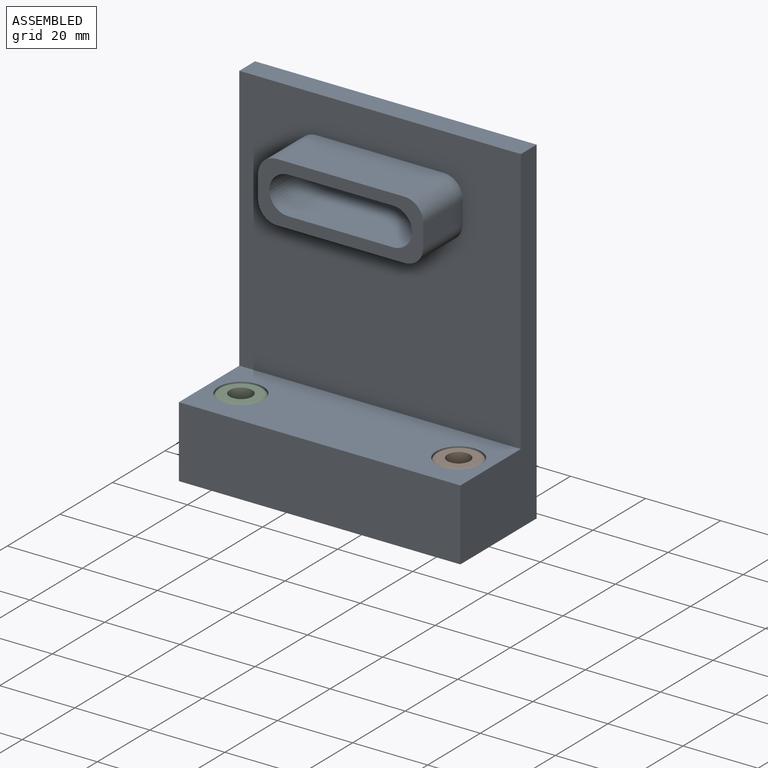
[diagram: assembled view]
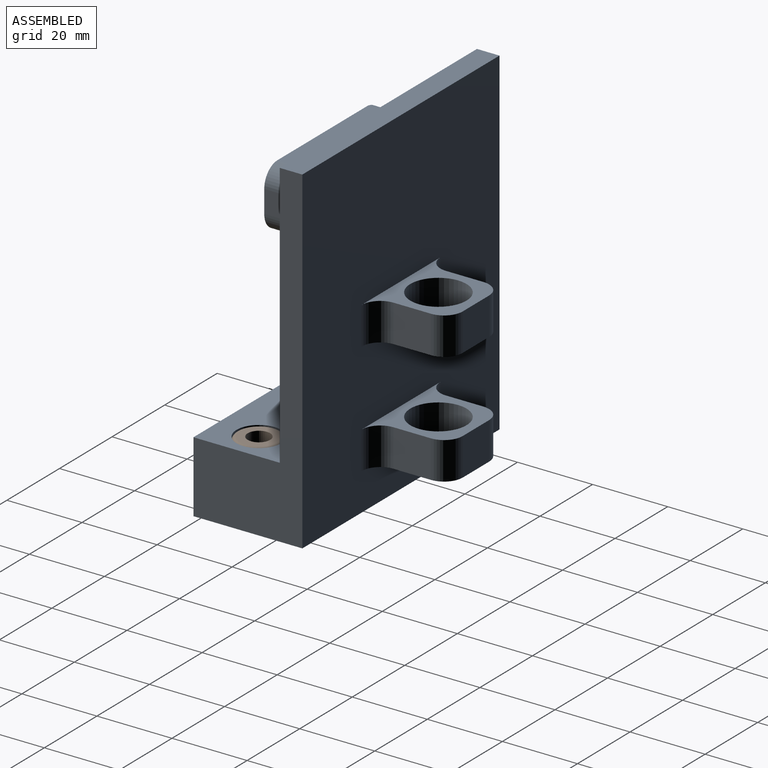
[diagram: assembled view, second angle]
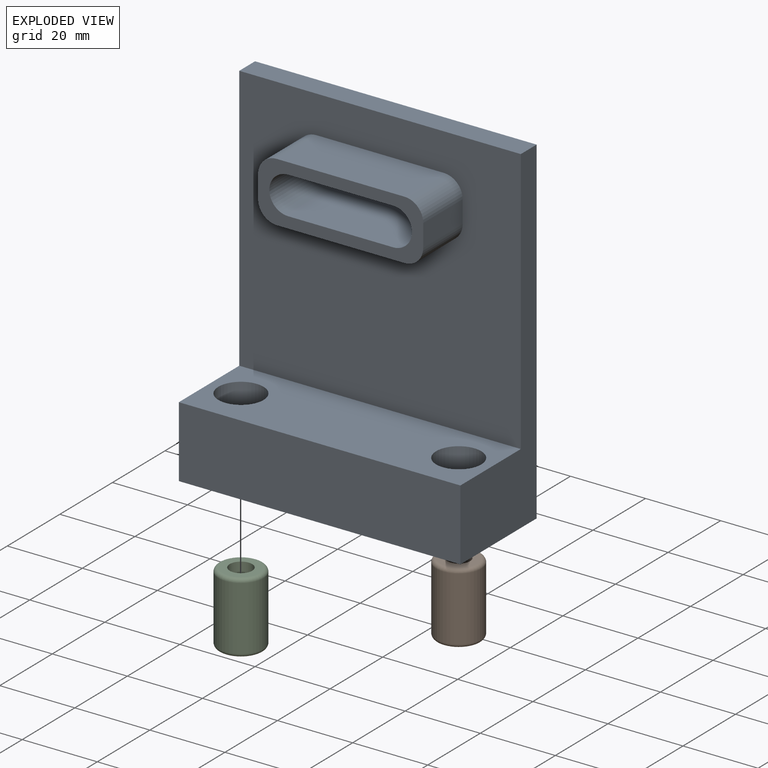
[diagram: exploded view]
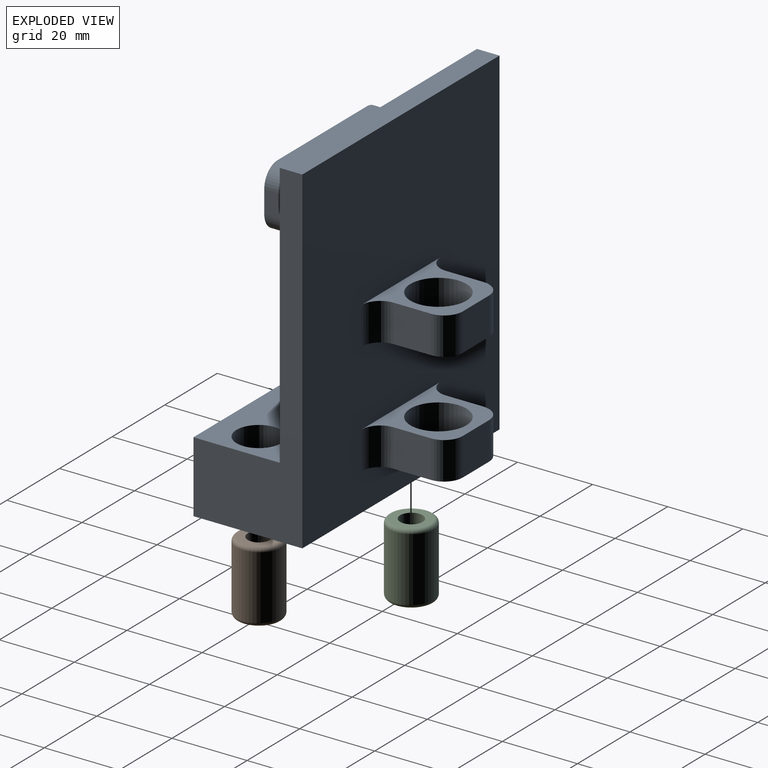
[diagram: exploded view, second angle]
ASSEMBLY  parts=3 mates=2
PART A: 62 faces, bbox 75x49x90 mm
  f0: plane 90x75mm, normal (0,1,0), area 6150mm2, adj f2,f3,f4,f5,f25,f27,f29,f31
  f1: plane 75x71mm, normal (0,-1,0), area 4642.5mm2, adj f2,f4,f5,f6,f10,f11,f12,f13
  f2: plane 90x29mm, normal (-1,0,0), area 977mm2, adj f0,f1,f3,f5,f6,f7
  f3: plane 75x29mm, normal (0,0,-1), area 1948.8mm2, adj f0,f2,f4,f7,f8,f9
  f4: plane 90x29mm, normal (1,0,0), area 977mm2, adj f0,f1,f3,f5,f6,f7
  f5: plane 75x6mm, normal (0,0,1), area 450mm2, adj f0,f1,f2,f4
  f6: plane 75x23mm, normal (0,0,1), area 1498.8mm2, adj f1,f2,f4,f7,f8,f9
  f7: plane 75x19mm, normal (0,-1,0), area 1425mm2, adj f2,f3,f4,f6
  f8: cylinder r=6mm len=19mm, axis (0,0,1), area 716.3mm2, adj f3,f6
  f9: cylinder r=6mm len=19mm, axis (0,0,1), area 716.3mm2, adj f3,f6
  f10: plane 15x6mm, normal (-1,0,0), area 90mm2, adj f1,f14,f20,f23
  f11: plane 34x15mm, normal (0,0,-1), area 510mm2, adj f1,f14,f20,f21
  f12: plane 15x6mm, normal (1,0,0), area 90mm2, adj f1,f14,f21,f22
  f13: plane 34x15mm, normal (0,0,1), area 510mm2, adj f1,f14,f22,f23
  f14: plane 44x16mm, normal (0,-1,0), area 324mm2, adj f10,f11,f12,f13,f15,f16,f18,f19
  f15: plane 28x18mm, normal (0,0,-1), area 504mm2, adj f14,f17,f18,f19
  f16: plane 28x18mm, normal (0,0,1), area 504mm2, adj f14,f17,f18,f19
  f17: plane 38x10mm, normal (0,-1,0), area 358.5mm2, adj f15,f16,f18,f19
  f18: cylinder r=5mm len=18mm, axis (0,1,0), area 282.7mm2, adj f14,f15,f16,f17
  f19: cylinder r=5mm len=18mm, axis (0,-1,0), area 282.7mm2, adj f14,f15,f16,f17
  f20: cylinder r=5mm len=15mm, axis (0,1,0), area 117.8mm2, adj f1,f10,f11,f14
  f21: cylinder r=5mm len=15mm, axis (0,-1,0), area 117.8mm2, adj f1,f11,f12,f14
  f22: cylinder r=5mm len=15mm, axis (0,1,0), area 117.8mm2, adj f1,f12,f13,f14
  f23: cylinder r=5mm len=15mm, axis (0,-1,0), area 117.8mm2, adj f1,f10,f13,f14
  f24: plane 10x10mm, normal (-1,0,0), area 100mm2, adj f25,f27,f37,f39
  f25: plane 30x20mm, normal (0,0,1), area 223.3mm2, adj f0,f24,f26,f28,f35,f36,f37,f38
  f26: plane 10x10mm, normal (1,0,0), area 100mm2, adj f25,f27,f36,f38
  f27: plane 30x20mm, normal (0,0,-1), area 223.3mm2, adj f0,f24,f26,f28,f35,f36,f37,f38
  f28: plane 10x10mm, normal (0,1,0), area 100mm2, adj f25,f27,f38,f39
  f29: plane 30x20mm, normal (0,0,-1), area 223.3mm2, adj f0,f30,f32,f33,f34,f40,f41,f42
  f30: plane 10x10mm, normal (-1,0,0), area 100mm2, adj f29,f31,f40,f42
  f31: plane 30x20mm, normal (0,0,1), area 223.3mm2, adj f0,f30,f32,f33,f34,f40,f41,f42
  f32: plane 10x10mm, normal (1,0,0), area 100mm2, adj f29,f31,f41,f43
  f33: plane 10x10mm, normal (0,1,0), area 100mm2, adj f29,f31,f42,f43
  f34: cylinder r=7.5mm len=15mm, axis (0,0,1), area 471.2mm2, adj f29,f31
  f35: cylinder r=7.5mm len=15mm, axis (0,0,1), area 471.2mm2, adj f25,f27
  f36: cylinder r=5mm len=10mm, axis (0,0,1), area 78.5mm2, adj f0,f25,f26,f27
  f37: cylinder r=5mm len=10mm, axis (0,0,-1), area 78.5mm2, adj f0,f24,f25,f27
  f38: cylinder r=5mm len=10mm, axis (0,0,1), area 78.5mm2, adj f25,f26,f27,f28
  f39: cylinder r=5mm len=10mm, axis (0,0,-1), area 78.5mm2, adj f24,f25,f27,f28
  f40: cylinder r=5mm len=10mm, axis (0,0,-1), area 78.5mm2, adj f0,f29,f30,f31
  f41: cylinder r=5mm len=10mm, axis (0,0,1), area 78.5mm2, adj f0,f29,f31,f32
  f42: cylinder r=5mm len=10mm, axis (0,0,-1), area 78.5mm2, adj f29,f30,f31,f33
  f43: cylinder r=5mm len=10mm, axis (0,0,1), area 78.5mm2, adj f29,f31,f32,f33
  f44: plane 52.08x13mm, normal (0,1,0), area 677.1mm2, adj f45,f46,f50,f51
  f45: plane 69x23mm, normal (0,0,-1), area 1148.6mm2, adj f44,f47,f48,f49,f50,f51
  f46: plane 69x23mm, normal (0,0,1), area 1148.6mm2, adj f44,f47,f48,f49,f50,f51
  f47: plane 13x7.38mm, normal (1,0,0), area 95.9mm2, adj f45,f46,f49,f51
  f48: plane 13x7.38mm, normal (-1,0,0), area 95.9mm2, adj f45,f46,f49,f50
  f49: plane 69x13mm, normal (0,-1,0), area 897mm2, adj f45,f46,f47,f48
  f50: cylinder r=9mm len=17.5mm, axis (0,0,1), area 405.3mm2, adj f44,f45,f46,f48
  f51: cylinder r=9mm len=17.5mm, axis (0,0,1), area 405.3mm2, adj f44,f45,f46,f47
  f52: plane 2.54x1.38mm, normal (0,0,-1), area 1.5mm2, adj f54,f55,f56
  f53: plane 2.54x1.38mm, normal (0,0,1), area 1.5mm2, adj f54,f55,f56
  f54: plane 13x2.54mm, normal (0,1,0), area 33mm2, adj f52,f53,f55,f56
  f55: cylinder r=9mm len=13mm, axis (0,0,1), area 37.7mm2, adj f52,f53,f54,f56
  f56: plane 13x1.38mm, normal (1,0,0), area 17.9mm2, adj f52,f53,f54,f55
  f57: plane 13x2.54mm, normal (0,1,0), area 33mm2, adj f58,f59,f60,f61
  f58: plane 2.54x1.38mm, normal (0,0,1), area 1.5mm2, adj f57,f60,f61
  f59: plane 2.54x1.38mm, normal (0,0,-1), area 1.5mm2, adj f57,f60,f61
  f60: cylinder r=9mm len=13mm, axis (0,0,1), area 37.7mm2, adj f57,f58,f59,f61
  f61: plane 13x1.38mm, normal (-1,0,0), area 17.9mm2, adj f57,f58,f59,f60
PART B: 6 faces, bbox 13x19x13 mm
  f0: cylinder r=3mm len=19mm, axis (0,1,0), area 358.1mm2, adj f2,f3
  f1: cylinder r=6mm len=17mm, axis (0,1,0), area 640.9mm2, adj f4,f5
  f2: plane 10x10mm, normal (0,-1,0), area 50.3mm2, adj f0,f5
  f3: plane 10x10mm, normal (0,1,0), area 50.3mm2, adj f0,f4
  f4: torus R=5mm, axis (0,-1,0), area 55.6mm2, adj f1,f3
  f5: torus R=5mm, axis (0,-1,0), area 55.6mm2, adj f1,f2
PART C: same geometry as B
PLACE A t=(-19.75,0.96,6.33)mm fixed
PLACE B rot(axis=(-1,0,0),90deg) t=(11.84,-16.54,-50.45)mm
PLACE C rot(axis=(-1,0,0),90deg) t=(-46.16,-16.54,-50.45)mm
MATE fastened C.f0 <-> A.f9  axis (0,0,1) through (-46.16,-16.54,-31.45)mm
MATE fastened B.f0 <-> A.f8  axis (0,0,1) through (11.84,-16.54,-31.45)mm
